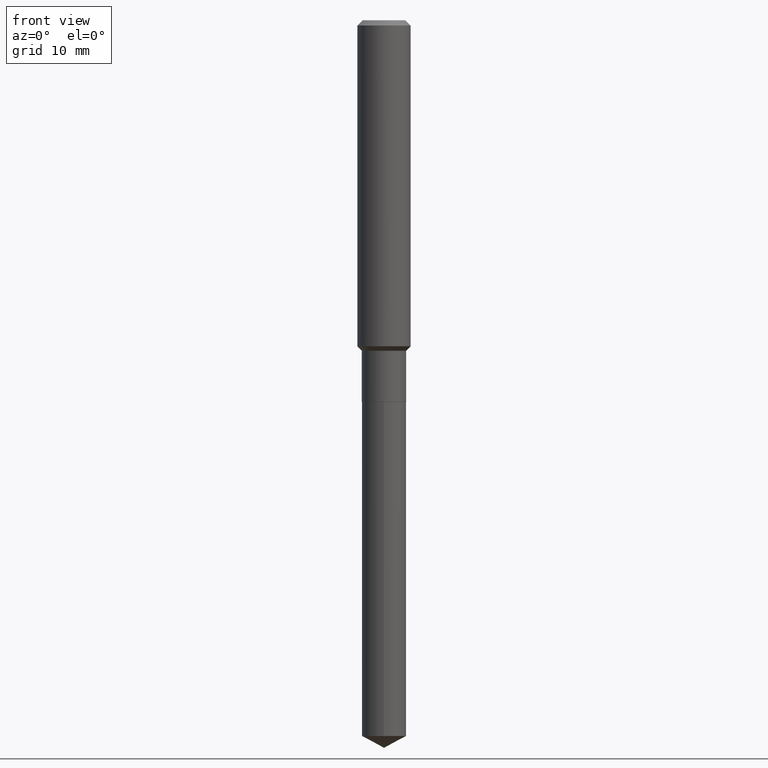
[diagram: clean part render]
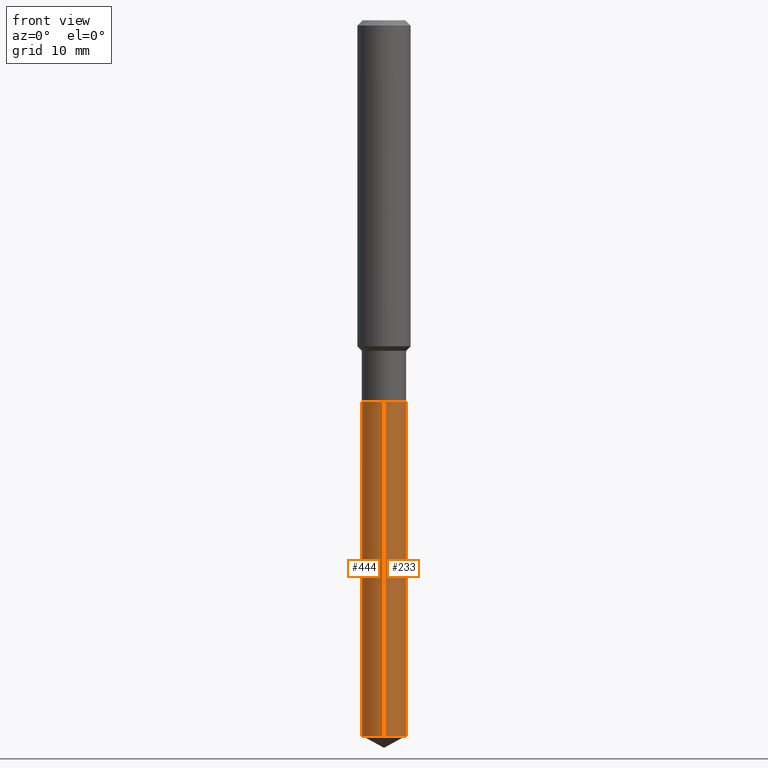
[diagram: same view with one multi-face feature highlighted, each face labeled with its STEP entity id]
A machine part, front view. The highlighted faces form ONE feature: a constant-radius fillet chain: 2 tangent blend faces with common blend radius 2.5006 mm. The faces share edges in the B-rep.
Their STEP definitions:
[1] entity #233 (Cylinder):
#1 = ORIENTED_EDGE ( 'NONE', *, *, #316, .F. ) ;
#2 = CARTESIAN_POINT ( 'NONE',  ( -6.874726756181714407E-16, -0.09845000000000590779, -1.692899999999999849 ) ) ;
#3 = CYLINDRICAL_SURFACE ( 'NONE', #181, 0.09844999999999999585 ) ;
#20 = CARTESIAN_POINT ( 'NONE',  ( 4.139934141990818357E-29, -5.910728758527561864E-15, -1.692900000000000071 ) ) ;
#31 = CARTESIAN_POINT ( 'NONE',  ( -6.874726756181350545E-16, -0.09845000000001107032, -3.175953206452927002 ) ) ;
#38 = AXIS2_PLACEMENT_3D ( 'NONE', #104, #251, #106 ) ;
#43 = EDGE_CURVE ( 'NONE', #480, #86, #253, .T. ) ;
#46 = VECTOR ( 'NONE', #139, 39.37007874015748143 ) ;
#52 = ORIENTED_EDGE ( 'NONE', *, *, #43, .F. ) ;
#57 = ORIENTED_EDGE ( 'NONE', *, *, #76, .T. ) ;
#72 = CARTESIAN_POINT ( 'NONE',  ( -6.874726756181714407E-16, -0.09845000000000590779, -1.692899999999999849 ) ) ;
#73 = EDGE_CURVE ( 'NONE', #290, #403, #137, .T. ) ;
#76 = EDGE_CURVE ( 'NONE', #480, #290, #485, .T. ) ;
#86 = VERTEX_POINT ( 'NONE', #2 ) ;
#88 = DIRECTION ( 'NONE',  ( -6.982962677686265922E-15, -1.000000000000000000, 2.774858297271979165E-15 ) ) ;
#104 = CARTESIAN_POINT ( 'NONE',  ( 7.766680586692997852E-29, -1.108880127269587655E-14, -3.175953206452927891 ) ) ;
#106 = DIRECTION ( 'NONE',  ( -6.982962677686265922E-15, -1.000000000000000000, 5.549716594543958330E-15 ) ) ;
#137 = LINE ( 'NONE', #442, #46 ) ;
#139 = DIRECTION ( 'NONE',  ( -2.445459427161350599E-29, 3.491494770139028640E-15, 1.000000000000000000 ) ) ;
#143 = DIRECTION ( 'NONE',  ( -2.445459427161350599E-29, 3.491494770139028640E-15, 1.000000000000000000 ) ) ;
#181 = AXIS2_PLACEMENT_3D ( 'NONE', #200, #425, #88 ) ;
#200 = CARTESIAN_POINT ( 'NONE',  ( 4.139934141990818357E-29, -5.910728758527561864E-15, -1.692900000000000071 ) ) ;
#230 = CIRCLE ( 'NONE', #459, 0.09844999999999999585 ) ;
#233 = ADVANCED_FACE ( 'NONE', ( #343 ), #3, .T. ) ;
#238 = VECTOR ( 'NONE', #143, 39.37007874015748143 ) ;
#251 = DIRECTION ( 'NONE',  ( -2.445459427161350318E-29, 3.491494770139028640E-15, 1.000000000000000000 ) ) ;
#253 = LINE ( 'NONE', #72, #238 ) ;
#290 = VERTEX_POINT ( 'NONE', #397 ) ;
#316 = EDGE_CURVE ( 'NONE', #86, #403, #230, .T. ) ;
#326 = ORIENTED_EDGE ( 'NONE', *, *, #73, .T. ) ;
#330 = EDGE_LOOP ( 'NONE', ( #57, #326, #1, #52 ) ) ;
#343 = FACE_OUTER_BOUND ( 'NONE', #330, .T. ) ;
#350 = CARTESIAN_POINT ( 'NONE',  ( 6.995293233558962077E-16, 0.09844999999999408391, -1.692900000000000293 ) ) ;
#358 = DIRECTION ( 'NONE',  ( -6.982962677686265922E-15, -1.000000000000000000, 2.774858297271979165E-15 ) ) ;
#397 = CARTESIAN_POINT ( 'NONE',  ( 6.995293233558961091E-16, 0.09844999999998889362, -3.175953206452928335 ) ) ;
#403 = VERTEX_POINT ( 'NONE', #350 ) ;
#425 = DIRECTION ( 'NONE',  ( -2.445459427161350318E-29, 3.491494770139028640E-15, 1.000000000000000000 ) ) ;
#431 = DIRECTION ( 'NONE',  ( -2.445459427161350318E-29, 3.491494770139028640E-15, 1.000000000000000000 ) ) ;
#442 = CARTESIAN_POINT ( 'NONE',  ( 6.995293233558598215E-16, 0.09844999999999408391, -1.692900000000000293 ) ) ;
#459 = AXIS2_PLACEMENT_3D ( 'NONE', #20, #431, #358 ) ;
#480 = VERTEX_POINT ( 'NONE', #31 ) ;
#485 = CIRCLE ( 'NONE', #38, 0.09844999999999999585 ) ;
[2] entity #444 (Cylinder):
#2 = CARTESIAN_POINT ( 'NONE',  ( -6.874726756181714407E-16, -0.09845000000000590779, -1.692899999999999849 ) ) ;
#12 = DIRECTION ( 'NONE',  ( -6.982962677686265922E-15, -1.000000000000000000, 2.774858297271979165E-15 ) ) ;
#31 = CARTESIAN_POINT ( 'NONE',  ( -6.874726756181350545E-16, -0.09845000000001107032, -3.175953206452927002 ) ) ;
#43 = EDGE_CURVE ( 'NONE', #480, #86, #253, .T. ) ;
#46 = VECTOR ( 'NONE', #139, 39.37007874015748143 ) ;
#72 = CARTESIAN_POINT ( 'NONE',  ( -6.874726756181714407E-16, -0.09845000000000590779, -1.692899999999999849 ) ) ;
#73 = EDGE_CURVE ( 'NONE', #290, #403, #137, .T. ) ;
#86 = VERTEX_POINT ( 'NONE', #2 ) ;
#103 = CIRCLE ( 'NONE', #163, 0.09844999999999999585 ) ;
#131 = AXIS2_PLACEMENT_3D ( 'NONE', #133, #314, #12 ) ;
#133 = CARTESIAN_POINT ( 'NONE',  ( 4.139934141990818357E-29, -5.910728758527561864E-15, -1.692900000000000071 ) ) ;
#137 = LINE ( 'NONE', #442, #46 ) ;
#139 = DIRECTION ( 'NONE',  ( -2.445459427161350599E-29, 3.491494770139028640E-15, 1.000000000000000000 ) ) ;
#140 = DIRECTION ( 'NONE',  ( -6.982962677686265922E-15, -1.000000000000000000, 2.774858297271979165E-15 ) ) ;
#143 = DIRECTION ( 'NONE',  ( -2.445459427161350599E-29, 3.491494770139028640E-15, 1.000000000000000000 ) ) ;
#147 = DIRECTION ( 'NONE',  ( -2.445459427161350318E-29, 3.491494770139028640E-15, 1.000000000000000000 ) ) ;
#163 = AXIS2_PLACEMENT_3D ( 'NONE', #216, #257, #214 ) ;
#187 = ORIENTED_EDGE ( 'NONE', *, *, #73, .F. ) ;
#205 = ORIENTED_EDGE ( 'NONE', *, *, #462, .T. ) ;
#214 = DIRECTION ( 'NONE',  ( -6.982962677686265922E-15, -1.000000000000000000, 5.549716594543958330E-15 ) ) ;
#216 = CARTESIAN_POINT ( 'NONE',  ( 7.766680586692997852E-29, -1.108880127269587655E-14, -3.175953206452927891 ) ) ;
#238 = VECTOR ( 'NONE', #143, 39.37007874015748143 ) ;
#253 = LINE ( 'NONE', #72, #238 ) ;
#257 = DIRECTION ( 'NONE',  ( -2.445459427161350318E-29, 3.491494770139028640E-15, 1.000000000000000000 ) ) ;
#271 = AXIS2_PLACEMENT_3D ( 'NONE', #362, #147, #140 ) ;
#282 = ORIENTED_EDGE ( 'NONE', *, *, #296, .F. ) ;
#290 = VERTEX_POINT ( 'NONE', #397 ) ;
#296 = EDGE_CURVE ( 'NONE', #403, #86, #337, .T. ) ;
#310 = FACE_OUTER_BOUND ( 'NONE', #439, .T. ) ;
#314 = DIRECTION ( 'NONE',  ( -2.445459427161350318E-29, 3.491494770139028640E-15, 1.000000000000000000 ) ) ;
#337 = CIRCLE ( 'NONE', #131, 0.09844999999999999585 ) ;
#350 = CARTESIAN_POINT ( 'NONE',  ( 6.995293233558962077E-16, 0.09844999999999408391, -1.692900000000000293 ) ) ;
#362 = CARTESIAN_POINT ( 'NONE',  ( 4.139934141990818357E-29, -5.910728758527561864E-15, -1.692900000000000071 ) ) ;
#397 = CARTESIAN_POINT ( 'NONE',  ( 6.995293233558961091E-16, 0.09844999999998889362, -3.175953206452928335 ) ) ;
#403 = VERTEX_POINT ( 'NONE', #350 ) ;
#439 = EDGE_LOOP ( 'NONE', ( #187, #205, #450, #282 ) ) ;
#442 = CARTESIAN_POINT ( 'NONE',  ( 6.995293233558598215E-16, 0.09844999999999408391, -1.692900000000000293 ) ) ;
#444 = ADVANCED_FACE ( 'NONE', ( #310 ), #461, .T. ) ;
#450 = ORIENTED_EDGE ( 'NONE', *, *, #43, .T. ) ;
#461 = CYLINDRICAL_SURFACE ( 'NONE', #271, 0.09844999999999999585 ) ;
#462 = EDGE_CURVE ( 'NONE', #290, #480, #103, .T. ) ;
#480 = VERTEX_POINT ( 'NONE', #31 ) ;